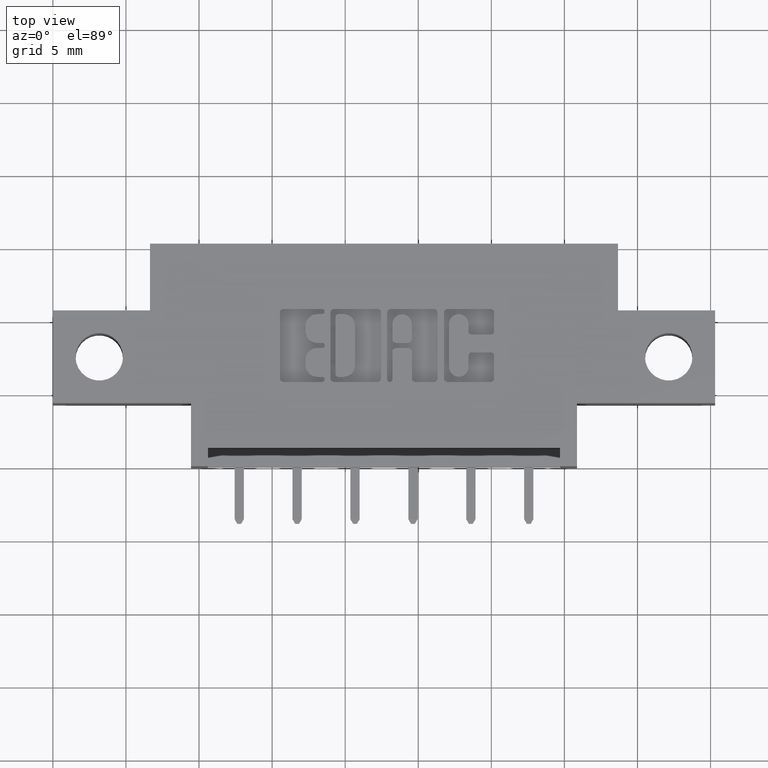
[diagram: clean part render]
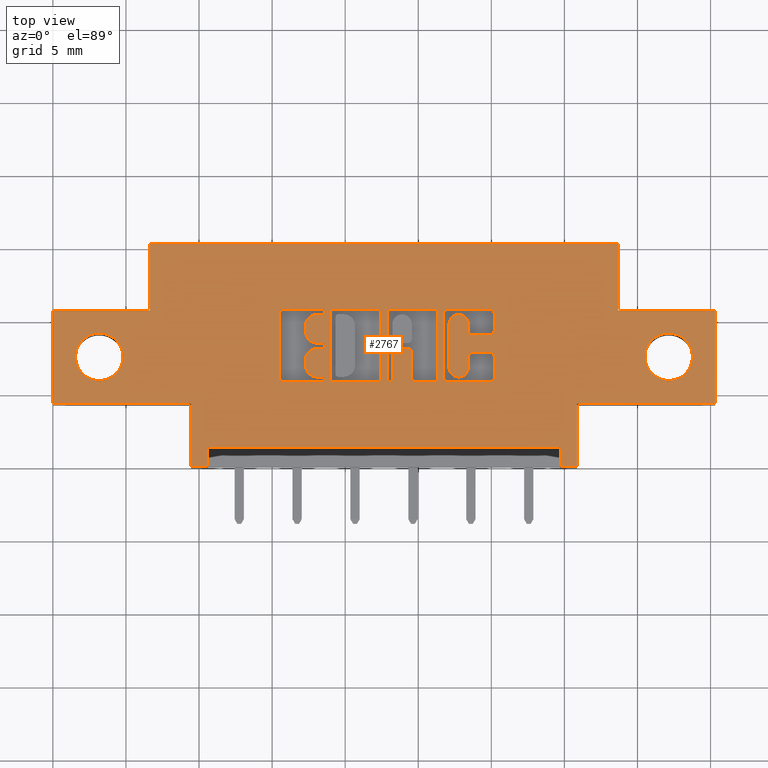
[diagram: same view with one face highlighted and labeled with its STEP entity id]
A machine part, top view. The second image highlights one B-rep face of the part: STEP entity #2767.
In plain terms, the highlighted planar face has unit normal (0, 0, -1).
Its self-contained STEP definition (entity closure, byte-faithful):
#14 = VERTEX_POINT ( 'NONE', #5236 ) ;
#21 = DIRECTION ( 'NONE',  ( 1.000000000000000000, 0.0000000000000000000, 0.0000000000000000000 ) ) ;
#23 = VERTEX_POINT ( 'NONE', #597 ) ;
#29 = ORIENTED_EDGE ( 'NONE', *, *, #5476, .T. ) ;
#45 = CARTESIAN_POINT ( 'NONE',  ( 0.7479550397591688800, 0.2366589681657896800, 0.0000000000000000000 ) ) ;
#46 = EDGE_CURVE ( 'NONE', #1176, #23, #290, .T. ) ;
#52 = DIRECTION ( 'NONE',  ( -0.0000000000000000000, 0.0000000000000000000, 1.000000000000000000 ) ) ;
#61 = EDGE_CURVE ( 'NONE', #4767, #931, #5685, .T. ) ;
#62 = DIRECTION ( 'NONE',  ( -0.0000000000000000000, 0.0000000000000000000, 1.000000000000000000 ) ) ;
#67 = CARTESIAN_POINT ( 'NONE',  ( 1.188678631909939600, 0.2965345564089702000, 0.0000000000000000000 ) ) ;
#81 = ORIENTED_EDGE ( 'NONE', *, *, #5847, .F. ) ;
#99 = CARTESIAN_POINT ( 'NONE',  ( 1.723000000000000800, 0.2950000000000001500, 0.0000000000000000000 ) ) ;
#107 = CARTESIAN_POINT ( 'NONE',  ( 1.178862961706166800, 0.3637718973050383900, 0.0000000000000000000 ) ) ;
#120 = DIRECTION ( 'NONE',  ( -0.0000000000000000000, -1.000000000000000000, -0.0000000000000000000 ) ) ;
#124 = CIRCLE ( 'NONE', #8358, 0.006870969142648433200 ) ;
#140 = CIRCLE ( 'NONE', #750, 0.06400000000000000100 ) ;
#158 = CARTESIAN_POINT ( 'NONE',  ( 1.366499999999999800, 0.05000000000000000300, 0.0000000000000000000 ) ) ;
#174 = CIRCLE ( 'NONE', #3178, 0.006870969142662229500 ) ;
#175 = ORIENTED_EDGE ( 'NONE', *, *, #7227, .F. ) ;
#182 = CARTESIAN_POINT ( 'NONE',  ( 0.9570288151001877800, 0.3181290308573495600, 0.0000000000000000000 ) ) ;
#193 = CARTESIAN_POINT ( 'NONE',  ( -1.634053534412015200E-015, 0.2268432979619802400, 0.0000000000000000000 ) ) ;
#196 = AXIS2_PLACEMENT_3D ( 'NONE', #5502, #2895, #6872 ) ;
#202 = CARTESIAN_POINT ( 'NONE',  ( 0.9005887114283305200, 0.2337142671046476800, 0.0000000000000000000 ) ) ;
#232 = CARTESIAN_POINT ( 'NONE',  ( -0.0000000000000000000, 0.3181290308573565500, 0.0000000000000000000 ) ) ;
#256 = AXIS2_PLACEMENT_3D ( 'NONE', #1093, #1004, #853 ) ;
#287 = CARTESIAN_POINT ( 'NONE',  ( 1.093221239177998300, 0.2668421540424527600, 0.0000000000000000000 ) ) ;
#290 = LINE ( 'NONE', #529, #7116 ) ;
#311 = DIRECTION ( 'NONE',  ( -0.0000000000000000000, 0.0000000000000000000, 1.000000000000000000 ) ) ;
#352 = DIRECTION ( 'NONE',  ( 0.0000000000000000000, -1.000000000000000000, 0.0000000000000000000 ) ) ;
#393 = LINE ( 'NONE', #8258, #2214 ) ;
#412 = DIRECTION ( 'NONE',  ( 1.000000000000000000, 0.0000000000000000000, 0.0000000000000000000 ) ) ;
#416 = DIRECTION ( 'NONE',  ( -0.0000000000000000000, 0.0000000000000000000, 1.000000000000000000 ) ) ;
#429 = CARTESIAN_POINT ( 'NONE',  ( 0.9074596805709865800, 0.2337142671046476800, 0.0000000000000000000 ) ) ;
#430 = CARTESIAN_POINT ( 'NONE',  ( 1.119478156973165600, 0.0000000000000000000, 0.0000000000000000000 ) ) ;
#439 = CARTESIAN_POINT ( 'NONE',  ( -0.0000000000000000000, 0.2268432979619829400, 0.0000000000000000000 ) ) ;
#442 = CARTESIAN_POINT ( 'NONE',  ( 0.7577707099630097700, 0.4133410318342098400, 0.0000000000000000000 ) ) ;
#448 = DIRECTION ( 'NONE',  ( 1.000000000000000000, 7.203446383881654600E-015, 0.0000000000000000000 ) ) ;
#449 = VERTEX_POINT ( 'NONE', #7503 ) ;
#451 = ORIENTED_EDGE ( 'NONE', *, *, #3701, .F. ) ;
#461 = ORIENTED_EDGE ( 'NONE', *, *, #2491, .F. ) ;
#467 = VECTOR ( 'NONE', #2486, 39.37007874015748100 ) ;
#477 = LINE ( 'NONE', #8010, #7241 ) ;
#510 = ORIENTED_EDGE ( 'NONE', *, *, #4134, .F. ) ;
#512 = EDGE_CURVE ( 'NONE', #4960, #7691, #2773, .T. ) ;
#523 = DIRECTION ( 'NONE',  ( -1.000000000000000000, 0.0000000000000000000, -0.0000000000000000000 ) ) ;
#525 = VECTOR ( 'NONE', #1451, 39.37007874015748100 ) ;
#529 = CARTESIAN_POINT ( 'NONE',  ( 0.0000000000000000000, 0.5999999999999999800, 0.0000000000000000000 ) ) ;
#550 = DIRECTION ( 'NONE',  ( -0.0000000000000000000, -1.000000000000000000, -0.0000000000000000000 ) ) ;
#560 = ORIENTED_EDGE ( 'NONE', *, *, #5642, .F. ) ;
#563 = VERTEX_POINT ( 'NONE', #6988 ) ;
#565 = CARTESIAN_POINT ( 'NONE',  ( 0.9668444853039842600, 0.2366589681657875800, 0.0000000000000000000 ) ) ;
#566 = AXIS2_PLACEMENT_3D ( 'NONE', #3360, #2489, #3016 ) ;
#570 = VERTEX_POINT ( 'NONE', #3544 ) ;
#576 = DIRECTION ( 'NONE',  ( -0.0000000000000000000, 0.0000000000000000000, 1.000000000000000000 ) ) ;
#597 = CARTESIAN_POINT ( 'NONE',  ( 2.731847993664263200E-016, 0.1699999999999999800, 3.951581205970576600E-015 ) ) ;
#598 = AXIS2_PLACEMENT_3D ( 'NONE', #6696, #6530, #6487 ) ;
#604 = DIRECTION ( 'NONE',  ( 0.0000000000000000000, 1.000000000000000000, -0.0000000000000000000 ) ) ;
#607 = LINE ( 'NONE', #7746, #3981 ) ;
#616 = CIRCLE ( 'NONE', #7551, 0.009815670203840084000 ) ;
#632 = VERTEX_POINT ( 'NONE', #2632 ) ;
#639 = EDGE_CURVE ( 'NONE', #7691, #1658, #6908, .T. ) ;
#640 = CARTESIAN_POINT ( 'NONE',  ( 1.036044960240806400, 0.2366589681657806100, 0.0000000000000000000 ) ) ;
#649 = CARTESIAN_POINT ( 'NONE',  ( 0.4174999999999999800, 0.05000000000000000300, 0.0000000000000000000 ) ) ;
#654 = EDGE_CURVE ( 'NONE', #5436, #2838, #5047, .T. ) ;
#656 = DIRECTION ( 'NONE',  ( 1.000000000000000000, 0.0000000000000000000, 0.0000000000000000000 ) ) ;
#658 = VECTOR ( 'NONE', #448, 39.37007874015748100 ) ;
#670 = EDGE_LOOP ( 'NONE', ( #2361, #2800, #1204, #6660, #3280, #4911, #5329, #3878, #2754, #1996, #4095, #1930, #5285, #2627 ) ) ;
#675 = VERTEX_POINT ( 'NONE', #7147 ) ;
#681 = ORIENTED_EDGE ( 'NONE', *, *, #4059, .F. ) ;
#708 = EDGE_CURVE ( 'NONE', #3999, #845, #8163, .T. ) ;
#750 = AXIS2_PLACEMENT_3D ( 'NONE', #6349, #767, #4260 ) ;
#767 = DIRECTION ( 'NONE',  ( 0.0000000000000000000, 0.0000000000000000000, 1.000000000000000000 ) ) ;
#779 = EDGE_LOOP ( 'NONE', ( #3838, #5806, #5990, #6165, #4881, #81, #7137, #5712 ) ) ;
#788 = CARTESIAN_POINT ( 'NONE',  ( 1.063038053301298900, 0.4231567020380507800, 0.0000000000000000000 ) ) ;
#790 = LINE ( 'NONE', #232, #4157 ) ;
#797 = CIRCLE ( 'NONE', #1038, 0.009815670203806345400 ) ;
#805 = EDGE_CURVE ( 'NONE', #3637, #5575, #2012, .T. ) ;
#809 = CARTESIAN_POINT ( 'NONE',  ( 0.7251336065353507500, 0.4231567020380324600, 0.0000000000000000000 ) ) ;
#826 = VERTEX_POINT ( 'NONE', #6722 ) ;
#831 = VERTEX_POINT ( 'NONE', #2255 ) ;
#836 = ORIENTED_EDGE ( 'NONE', *, *, #3539, .F. ) ;
#841 = EDGE_CURVE ( 'NONE', #1174, #5162, #3390, .T. ) ;
#845 = VERTEX_POINT ( 'NONE', #3173 ) ;
#853 = DIRECTION ( 'NONE',  ( 1.000000000000000000, 0.0000000000000000000, 0.0000000000000000000 ) ) ;
#864 = VERTEX_POINT ( 'NONE', #6965 ) ;
#907 = CIRCLE ( 'NONE', #256, 0.009815670203803203800 ) ;
#930 = CARTESIAN_POINT ( 'NONE',  ( 0.7577707099629755700, 0.2268432979619829400, 0.0000000000000000000 ) ) ;
#931 = VERTEX_POINT ( 'NONE', #1497 ) ;
#933 = ORIENTED_EDGE ( 'NONE', *, *, #7105, .F. ) ;
#935 = LINE ( 'NONE', #7315, #4318 ) ;
#947 = DIRECTION ( 'NONE',  ( 1.000000000000000000, 0.0000000000000000000, 0.0000000000000000000 ) ) ;
#948 = LINE ( 'NONE', #6334, #6052 ) ;
#980 = VERTEX_POINT ( 'NONE', #3693 ) ;
#1000 = DIRECTION ( 'NONE',  ( 1.000000000000000000, 0.0000000000000000000, 0.0000000000000000000 ) ) ;
#1004 = DIRECTION ( 'NONE',  ( -0.0000000000000000000, 0.0000000000000000000, 1.000000000000000000 ) ) ;
#1012 = DIRECTION ( 'NONE',  ( 1.000000000000000000, 0.0000000000000000000, 0.0000000000000000000 ) ) ;
#1038 = AXIS2_PLACEMENT_3D ( 'NONE', #8085, #7515, #8007 ) ;
#1046 = LINE ( 'NONE', #6019, #7954 ) ;
#1050 = CARTESIAN_POINT ( 'NONE',  ( 0.8735956183678617000, 0.2366589681657896800, 0.0000000000000000000 ) ) ;
#1058 = VECTOR ( 'NONE', #6290, 39.37007874015748100 ) ;
#1093 = CARTESIAN_POINT ( 'NONE',  ( 0.9241463199174497800, 0.3083133606535453100, 0.0000000000000000000 ) ) ;
#1106 = DIRECTION ( 'NONE',  ( 1.000000000000000000, 0.0000000000000000000, 0.0000000000000000000 ) ) ;
#1137 = EDGE_CURVE ( 'NONE', #675, #864, #7787, .T. ) ;
#1174 = VERTEX_POINT ( 'NONE', #7412 ) ;
#1176 = VERTEX_POINT ( 'NONE', #3323 ) ;
#1179 = VERTEX_POINT ( 'NONE', #2548 ) ;
#1181 = VERTEX_POINT ( 'NONE', #45 ) ;
#1185 = DIRECTION ( 'NONE',  ( 0.0000000000000000000, -1.000000000000000000, 0.0000000000000000000 ) ) ;
#1186 = CARTESIAN_POINT ( 'NONE',  ( 1.036044960240806400, 0.4133410318342007300, 0.0000000000000000000 ) ) ;
#1204 = ORIENTED_EDGE ( 'NONE', *, *, #7855, .T. ) ;
#1213 = AXIS2_PLACEMENT_3D ( 'NONE', #8203, #8156, #8123 ) ;
#1230 = CARTESIAN_POINT ( 'NONE',  ( 0.9005887114283305200, 0.4133410318342098400, 0.0000000000000000000 ) ) ;
#1285 = VECTOR ( 'NONE', #4186, 39.37007874015748100 ) ;
#1305 = CARTESIAN_POINT ( 'NONE',  ( 1.178862961706152600, 0.2965345564089702000, 0.0000000000000000000 ) ) ;
#1324 = CIRCLE ( 'NONE', #7613, 0.009815670203803340800 ) ;
#1330 = CARTESIAN_POINT ( 'NONE',  ( 0.7320045756779730600, 0.3250000000000201100, 0.0000000000000000000 ) ) ;
#1364 = VERTEX_POINT ( 'NONE', #7189 ) ;
#1401 = DIRECTION ( 'NONE',  ( 0.0000000000000000000, -1.000000000000000000, 0.0000000000000000000 ) ) ;
#1418 = CARTESIAN_POINT ( 'NONE',  ( 0.6208421106199376600, 0.4133410318342098400, 0.0000000000000000000 ) ) ;
#1419 = EDGE_CURVE ( 'NONE', #2031, #4827, #935, .T. ) ;
#1427 = LINE ( 'NONE', #8383, #6672 ) ;
#1432 = VERTEX_POINT ( 'NONE', #4201 ) ;
#1451 = DIRECTION ( 'NONE',  ( -1.000000000000000000, -0.0000000000000000000, 4.430023773509616400E-015 ) ) ;
#1460 = DIRECTION ( 'NONE',  ( -1.000000000000000000, 0.0000000000000000000, 0.0000000000000000000 ) ) ;
#1493 = DIRECTION ( 'NONE',  ( 1.000000000000000000, 0.0000000000000000000, 0.0000000000000000000 ) ) ;
#1497 = CARTESIAN_POINT ( 'NONE',  ( 0.9143306497136465300, 0.2337142671046476800, 0.0000000000000000000 ) ) ;
#1504 = ORIENTED_EDGE ( 'NONE', *, *, #2782, .F. ) ;
#1513 = ORIENTED_EDGE ( 'NONE', *, *, #805, .F. ) ;
#1539 = VERTEX_POINT ( 'NONE', #2245 ) ;
#1549 = DIRECTION ( 'NONE',  ( 1.000000000000000000, 0.0000000000000000000, 0.0000000000000000000 ) ) ;
#1555 = AXIS2_PLACEMENT_3D ( 'NONE', #442, #62, #5223 ) ;
#1562 = DIRECTION ( 'NONE',  ( -0.0000000000000000000, 0.0000000000000000000, 1.000000000000000000 ) ) ;
#1570 = CIRCLE ( 'NONE', #6449, 0.009815670203788042300 ) ;
#1585 = VECTOR ( 'NONE', #7114, 39.37007874015748100 ) ;
#1599 = AXIS2_PLACEMENT_3D ( 'NONE', #4597, #2876, #5438 ) ;
#1611 = VECTOR ( 'NONE', #3401, 39.37007874015748100 ) ;
#1629 = VECTOR ( 'NONE', #604, 39.37007874015748100 ) ;
#1640 = CARTESIAN_POINT ( 'NONE',  ( 0.0000000000000000000, 0.0000000000000000000, 0.0000000000000000000 ) ) ;
#1655 = AXIS2_PLACEMENT_3D ( 'NONE', #6251, #7702, #7778 ) ;
#1658 = VERTEX_POINT ( 'NONE', #5126 ) ;
#1676 = FACE_BOUND ( 'NONE', #779, .T. ) ;
#1683 = CIRCLE ( 'NONE', #2322, 0.009815670203806754800 ) ;
#1711 = DIRECTION ( 'NONE',  ( -0.0000000000000000000, 0.0000000000000000000, 1.000000000000000000 ) ) ;
#1738 = CIRCLE ( 'NONE', #2153, 0.03141014465215624000 ) ;
#1742 = EDGE_CURVE ( 'NONE', #8329, #6746, #6054, .T. ) ;
#1749 = VERTEX_POINT ( 'NONE', #640 ) ;
#1750 = CIRCLE ( 'NONE', #5091, 0.03141014465218178200 ) ;
#1764 = DIRECTION ( 'NONE',  ( 1.000000000000000000, 0.0000000000000000000, 0.0000000000000000000 ) ) ;
#1828 = CARTESIAN_POINT ( 'NONE',  ( 1.066964321382817900, 0.0000000000000000000, 0.0000000000000000000 ) ) ;
#1844 = ORIENTED_EDGE ( 'NONE', *, *, #1137, .F. ) ;
#1852 = CIRCLE ( 'NONE', #6059, 0.006870969142663458500 ) ;
#1876 = CARTESIAN_POINT ( 'NONE',  ( -0.0000000000000000000, 0.4231567020380063200, 0.0000000000000000000 ) ) ;
#1890 = FACE_BOUND ( 'NONE', #2855, .T. ) ;
#1905 = EDGE_CURVE ( 'NONE', #1658, #675, #6718, .T. ) ;
#1917 = AXIS2_PLACEMENT_3D ( 'NONE', #107, #2987, #1970 ) ;
#1930 = ORIENTED_EDGE ( 'NONE', *, *, #61, .F. ) ;
#1935 = LINE ( 'NONE', #4211, #5486 ) ;
#1936 = ORIENTED_EDGE ( 'NONE', *, *, #8174, .T. ) ;
#1939 = CARTESIAN_POINT ( 'NONE',  ( 1.053222383097458100, 0.0000000000000000000, 0.0000000000000000000 ) ) ;
#1942 = AXIS2_PLACEMENT_3D ( 'NONE', #1050, #52, #5695 ) ;
#1947 = LINE ( 'NONE', #4729, #6938 ) ;
#1970 = DIRECTION ( 'NONE',  ( 1.000000000000000000, 0.0000000000000000000, 0.0000000000000000000 ) ) ;
#1982 = DIRECTION ( 'NONE',  ( -0.0000000000000000000, 0.0000000000000000000, 1.000000000000000000 ) ) ;
#1996 = ORIENTED_EDGE ( 'NONE', *, *, #5082, .T. ) ;
#2008 = DIRECTION ( 'NONE',  ( -1.000000000000000000, 0.0000000000000000000, 0.0000000000000000000 ) ) ;
#2012 = LINE ( 'NONE', #7752, #5362 ) ;
#2017 = AXIS2_PLACEMENT_3D ( 'NONE', #429, #416, #412 ) ;
#2027 = VERTEX_POINT ( 'NONE', #3734 ) ;
#2031 = VERTEX_POINT ( 'NONE', #5604 ) ;
#2047 = CARTESIAN_POINT ( 'NONE',  ( 0.8735956183678956800, 0.4231567020380507800, 0.0000000000000000000 ) ) ;
#2059 = ORIENTED_EDGE ( 'NONE', *, *, #6321, .T. ) ;
#2076 = VERTEX_POINT ( 'NONE', #930 ) ;
#2088 = VECTOR ( 'NONE', #1460, 39.37007874015748100 ) ;
#2091 = AXIS2_PLACEMENT_3D ( 'NONE', #5051, #5032, #5031 ) ;
#2112 = CARTESIAN_POINT ( 'NONE',  ( 0.06099999999999979700, 0.2949999999999999800, 0.0000000000000000000 ) ) ;
#2115 = ORIENTED_EDGE ( 'NONE', *, *, #639, .F. ) ;
#2116 = DIRECTION ( 'NONE',  ( 0.0000000000000000000, -1.000000000000000000, 0.0000000000000000000 ) ) ;
#2146 = VERTEX_POINT ( 'NONE', #2047 ) ;
#2153 = AXIS2_PLACEMENT_3D ( 'NONE', #5719, #576, #8201 ) ;
#2165 = VERTEX_POINT ( 'NONE', #5299 ) ;
#2169 = EDGE_CURVE ( 'NONE', #4767, #8445, #2966, .T. ) ;
#2171 = DIRECTION ( 'NONE',  ( -0.0000000000000000000, 0.0000000000000000000, 1.000000000000000000 ) ) ;
#2184 = DIRECTION ( 'NONE',  ( -1.000000000000000000, -0.0000000000000000000, -0.0000000000000000000 ) ) ;
#2214 = VECTOR ( 'NONE', #8180, 39.37007874015748100 ) ;
#2227 = EDGE_CURVE ( 'NONE', #3604, #6324, #5861, .T. ) ;
#2233 = DIRECTION ( 'NONE',  ( -0.0000000000000000000, 0.0000000000000000000, 1.000000000000000000 ) ) ;
#2241 = CARTESIAN_POINT ( 'NONE',  ( 0.7320045756779992600, 0.4162857328953860100, 0.0000000000000000000 ) ) ;
#2245 = CARTESIAN_POINT ( 'NONE',  ( 0.9668444853039842600, 0.3083133606535432000, 0.0000000000000000000 ) ) ;
#2252 = EDGE_CURVE ( 'NONE', #5903, #563, #2319, .T. ) ;
#2255 = CARTESIAN_POINT ( 'NONE',  ( 0.7577707099630097700, 0.4231567020380507800, 0.0000000000000000000 ) ) ;
#2289 = EDGE_LOOP ( 'NONE', ( #4128, #3003, #3136, #461, #4236, #933, #8139, #2059, #3204, #29, #6219, #4652, #6070, #5692, #3933, #3710, #6248, #6445, #3215, #3609, #175 ) ) ;
#2318 = ORIENTED_EDGE ( 'NONE', *, *, #7256, .T. ) ;
#2319 = CIRCLE ( 'NONE', #3195, 0.009815670203822599700 ) ;
#2322 = AXIS2_PLACEMENT_3D ( 'NONE', #5852, #5215, #3948 ) ;
#2339 = DIRECTION ( 'NONE',  ( -0.0000000000000000000, 1.000000000000000000, -0.0000000000000000000 ) ) ;
#2350 = CARTESIAN_POINT ( 'NONE',  ( 1.066964321382817900, 0.2668421540424527600, 0.0000000000000000000 ) ) ;
#2361 = ORIENTED_EDGE ( 'NONE', *, *, #708, .T. ) ;
#2379 = VECTOR ( 'NONE', #2653, 39.37007874015748100 ) ;
#2390 = EDGE_CURVE ( 'NONE', #3483, #1432, #1046, .T. ) ;
#2424 = CIRCLE ( 'NONE', #5009, 0.006870969142648433200 ) ;
#2426 = LINE ( 'NONE', #649, #5764 ) ;
#2434 = CARTESIAN_POINT ( 'NONE',  ( 1.366499999999999800, 0.0000000000000000000, 0.0000000000000000000 ) ) ;
#2462 = EDGE_CURVE ( 'NONE', #6501, #3637, #2426, .T. ) ;
#2467 = CARTESIAN_POINT ( 'NONE',  ( 0.0000000000000000000, 0.0000000000000000000, 0.0000000000000000000 ) ) ;
#2486 = DIRECTION ( 'NONE',  ( -1.000000000000000000, 0.0000000000000000000, 0.0000000000000000000 ) ) ;
#2489 = DIRECTION ( 'NONE',  ( 0.0000000000000000000, 0.0000000000000000000, 1.000000000000000000 ) ) ;
#2491 = EDGE_CURVE ( 'NONE', #4093, #2165, #393, .T. ) ;
#2512 = EDGE_CURVE ( 'NONE', #5787, #8238, #3788, .T. ) ;
#2519 = AXIS2_PLACEMENT_3D ( 'NONE', #6014, #5504, #5070 ) ;
#2524 = EDGE_CURVE ( 'NONE', #8482, #449, #140, .T. ) ;
#2542 = VECTOR ( 'NONE', #5222, 39.37007874015748100 ) ;
#2548 = CARTESIAN_POINT ( 'NONE',  ( 1.784000000000000300, 0.1699999999999999800, 0.0000000000000000000 ) ) ;
#2560 = VECTOR ( 'NONE', #7622, 39.37007874015748100 ) ;
#2577 = ORIENTED_EDGE ( 'NONE', *, *, #6724, .F. ) ;
#2580 = CARTESIAN_POINT ( 'NONE',  ( 0.7251336065353351000, 0.2337142671046476800, 0.0000000000000000000 ) ) ;
#2585 = EDGE_CURVE ( 'NONE', #5045, #7776, #6608, .T. ) ;
#2604 = CIRCLE ( 'NONE', #598, 0.009815670203795690700 ) ;
#2622 = CARTESIAN_POINT ( 'NONE',  ( 0.2615000000000001200, 0.4199999999999999800, 0.0000000000000000000 ) ) ;
#2627 = ORIENTED_EDGE ( 'NONE', *, *, #7757, .F. ) ;
#2632 = CARTESIAN_POINT ( 'NONE',  ( 1.178862961706167900, 0.4231567020380507800, 0.0000000000000000000 ) ) ;
#2653 = DIRECTION ( 'NONE',  ( 1.000000000000000000, 0.0000000000000000000, 0.0000000000000000000 ) ) ;
#2754 = ORIENTED_EDGE ( 'NONE', *, *, #2390, .T. ) ;
#2767 = ADVANCED_FACE ( 'NONE', ( #1890, #5447, #6891, #5240, #3475, #1676, #8338 ), #3622, .F. ) ;
#2773 = CIRCLE ( 'NONE', #7920, 0.009815670203811535700 ) ;
#2782 = EDGE_CURVE ( 'NONE', #2027, #5983, #6695, .T. ) ;
#2800 = ORIENTED_EDGE ( 'NONE', *, *, #5366, .F. ) ;
#2838 = VERTEX_POINT ( 'NONE', #7457 ) ;
#2855 = EDGE_LOOP ( 'NONE', ( #5763, #836 ) ) ;
#2873 = EDGE_CURVE ( 'NONE', #8151, #3899, #4414, .T. ) ;
#2876 = DIRECTION ( 'NONE',  ( 0.0000000000000000000, 0.0000000000000000000, 1.000000000000000000 ) ) ;
#2895 = DIRECTION ( 'NONE',  ( -0.0000000000000000000, 0.0000000000000000000, 1.000000000000000000 ) ) ;
#2909 = ORIENTED_EDGE ( 'NONE', *, *, #1742, .F. ) ;
#2917 = CARTESIAN_POINT ( 'NONE',  ( 1.066964321382817900, 0.3831578459575293300, 0.0000000000000000000 ) ) ;
#2920 = CARTESIAN_POINT ( 'NONE',  ( 0.7251336064154139100, 0.2405852362473099600, 0.0000000000000000000 ) ) ;
#2921 = EDGE_CURVE ( 'NONE', #570, #23, #5864, .T. ) ;
#2939 = DIRECTION ( 'NONE',  ( 1.000000000000000000, 0.0000000000000000000, 0.0000000000000000000 ) ) ;
#2946 = CARTESIAN_POINT ( 'NONE',  ( 1.412000000000000100, 0.1699999999999999800, 0.0000000000000000000 ) ) ;
#2956 = DIRECTION ( 'NONE',  ( -0.0000000000000000000, 0.0000000000000000000, 1.000000000000000000 ) ) ;
#2962 = CARTESIAN_POINT ( 'NONE',  ( 0.0000000000000000000, 0.2268432979619843800, 0.0000000000000000000 ) ) ;
#2964 = VECTOR ( 'NONE', #8071, 39.37007874015748100 ) ;
#2966 = LINE ( 'NONE', #3910, #6220 ) ;
#2984 = LINE ( 'NONE', #8324, #2560 ) ;
#2987 = DIRECTION ( 'NONE',  ( -0.0000000000000000000, 0.0000000000000000000, 1.000000000000000000 ) ) ;
#3003 = ORIENTED_EDGE ( 'NONE', *, *, #7628, .F. ) ;
#3016 = DIRECTION ( 'NONE',  ( -1.000000000000000000, 0.0000000000000000000, 0.0000000000000000000 ) ) ;
#3045 = LINE ( 'NONE', #2467, #7935 ) ;
#3060 = CIRCLE ( 'NONE', #1599, 0.06400000000000073700 ) ;
#3066 = VECTOR ( 'NONE', #3904, 39.37007874015748100 ) ;
#3079 = VECTOR ( 'NONE', #2339, 39.37007874015748100 ) ;
#3097 = LINE ( 'NONE', #6255, #6149 ) ;
#3109 = DIRECTION ( 'NONE',  ( 1.000000000000000000, 0.0000000000000000000, 0.0000000000000000000 ) ) ;
#3112 = DIRECTION ( 'NONE',  ( 1.000000000000000000, 0.0000000000000000000, 0.0000000000000000000 ) ) ;
#3129 = AXIS2_PLACEMENT_3D ( 'NONE', #4947, #7387, #7097 ) ;
#3136 = ORIENTED_EDGE ( 'NONE', *, *, #4614, .T. ) ;
#3137 = CIRCLE ( 'NONE', #1213, 0.006870969142662229500 ) ;
#3140 = EDGE_CURVE ( 'NONE', #3604, #1749, #7596, .T. ) ;
#3156 = DIRECTION ( 'NONE',  ( -0.0000000000000000000, 0.0000000000000000000, 1.000000000000000000 ) ) ;
#3157 = CARTESIAN_POINT ( 'NONE',  ( -0.0000000000000000000, 0.3539562271012333700, 0.0000000000000000000 ) ) ;
#3173 = CARTESIAN_POINT ( 'NONE',  ( 1.026229290037013600, 0.4231567020380063200, 0.0000000000000000000 ) ) ;
#3178 = AXIS2_PLACEMENT_3D ( 'NONE', #2580, #3156, #3109 ) ;
#3180 = DIRECTION ( 'NONE',  ( 1.000000000000000000, 0.0000000000000000000, 0.0000000000000000000 ) ) ;
#3195 = AXIS2_PLACEMENT_3D ( 'NONE', #1418, #7816, #7786 ) ;
#3203 = CIRCLE ( 'NONE', #566, 0.06400000000000073700 ) ;
#3204 = ORIENTED_EDGE ( 'NONE', *, *, #1419, .F. ) ;
#3210 = CARTESIAN_POINT ( 'NONE',  ( 0.7479550397591688800, 0.4133410318342098400, 0.0000000000000000000 ) ) ;
#3215 = ORIENTED_EDGE ( 'NONE', *, *, #8413, .F. ) ;
#3225 = ORIENTED_EDGE ( 'NONE', *, *, #7974, .F. ) ;
#3228 = DIRECTION ( 'NONE',  ( 0.0000000000000000000, 1.000000000000000000, -0.0000000000000000000 ) ) ;
#3236 = DIRECTION ( 'NONE',  ( 0.0000000000000000000, 1.000000000000000000, -0.0000000000000000000 ) ) ;
#3255 = CARTESIAN_POINT ( 'NONE',  ( 0.3720000000000002700, 0.1699999999999999800, 2.303612362224999500E-015 ) ) ;
#3280 = ORIENTED_EDGE ( 'NONE', *, *, #2227, .T. ) ;
#3282 = VECTOR ( 'NONE', #4417, 39.37007874015748100 ) ;
#3297 = VECTOR ( 'NONE', #3464, 39.37007874015748100 ) ;
#3303 = CIRCLE ( 'NONE', #5928, 0.009815670203796920600 ) ;
#3323 = CARTESIAN_POINT ( 'NONE',  ( 0.0000000000000000000, 0.4199999999999999800, 0.0000000000000000000 ) ) ;
#3346 = VERTEX_POINT ( 'NONE', #4217 ) ;
#3360 = CARTESIAN_POINT ( 'NONE',  ( 1.659000000000000000, 0.2950000000000001500, 0.0000000000000000000 ) ) ;
#3370 = VECTOR ( 'NONE', #5269, 39.37007874015748100 ) ;
#3390 = LINE ( 'NONE', #4657, #1585 ) ;
#3397 = EDGE_CURVE ( 'NONE', #7406, #2146, #6040, .T. ) ;
#3401 = DIRECTION ( 'NONE',  ( -0.0000000000000000000, -1.000000000000000000, -0.0000000000000000000 ) ) ;
#3424 = ORIENTED_EDGE ( 'NONE', *, *, #5390, .F. ) ;
#3433 = LINE ( 'NONE', #4741, #1629 ) ;
#3436 = ORIENTED_EDGE ( 'NONE', *, *, #5184, .F. ) ;
#3455 = CARTESIAN_POINT ( 'NONE',  ( 1.178862961706133900, 0.2268432979619829400, 0.0000000000000000000 ) ) ;
#3464 = DIRECTION ( 'NONE',  ( 1.000000000000000000, 0.0000000000000000000, 0.0000000000000000000 ) ) ;
#3475 = FACE_OUTER_BOUND ( 'NONE', #4883, .T. ) ;
#3483 = VERTEX_POINT ( 'NONE', #182 ) ;
#3491 = LINE ( 'NONE', #8042, #3079 ) ;
#3539 = EDGE_CURVE ( 'NONE', #14, #5992, #3060, .T. ) ;
#3544 = CARTESIAN_POINT ( 'NONE',  ( 0.3720000000000002700, 0.1699999999999999800, 2.303612362224999500E-015 ) ) ;
#3579 = CARTESIAN_POINT ( 'NONE',  ( 1.784000000000000300, 0.1699999999999999800, 0.0000000000000000000 ) ) ;
#3587 = CARTESIAN_POINT ( 'NONE',  ( 0.2615000000000001200, 0.5999999999999999800, 0.0000000000000000000 ) ) ;
#3604 = VERTEX_POINT ( 'NONE', #5052 ) ;
#3609 = ORIENTED_EDGE ( 'NONE', *, *, #4079, .F. ) ;
#3622 = PLANE ( 'NONE',  #7756 ) ;
#3637 = VERTEX_POINT ( 'NONE', #7553 ) ;
#3679 = CARTESIAN_POINT ( 'NONE',  ( 1.412000000000000100, 0.1699999999999999800, 0.0000000000000000000 ) ) ;
#3682 = VERTEX_POINT ( 'NONE', #5879 ) ;
#3693 = CARTESIAN_POINT ( 'NONE',  ( 1.178862961706156100, 0.3063502266127572900, 0.0000000000000000000 ) ) ;
#3701 = EDGE_CURVE ( 'NONE', #7986, #2027, #1570, .T. ) ;
#3710 = ORIENTED_EDGE ( 'NONE', *, *, #4501, .F. ) ;
#3713 = EDGE_LOOP ( 'NONE', ( #4419, #4836 ) ) ;
#3718 = CARTESIAN_POINT ( 'NONE',  ( 0.9570288151001873400, 0.3083133606535525300, 0.0000000000000000000 ) ) ;
#3722 = VERTEX_POINT ( 'NONE', #565 ) ;
#3734 = CARTESIAN_POINT ( 'NONE',  ( 1.119478156973178700, 0.2965345564089684200, 0.0000000000000000000 ) ) ;
#3747 = DIRECTION ( 'NONE',  ( -0.0000000000000000000, 0.0000000000000000000, 1.000000000000000000 ) ) ;
#3753 = ORIENTED_EDGE ( 'NONE', *, *, #5267, .F. ) ;
#3771 = CARTESIAN_POINT ( 'NONE',  ( 0.0000000000000000000, 0.5999999999999999800, 0.0000000000000000000 ) ) ;
#3782 = DIRECTION ( 'NONE',  ( 0.0000000000000000000, -1.000000000000000000, 0.0000000000000000000 ) ) ;
#3788 = CIRCLE ( 'NONE', #1655, 0.03141014465221592800 ) ;
#3805 = AXIS2_PLACEMENT_3D ( 'NONE', #6528, #1562, #6021 ) ;
#3806 = CARTESIAN_POINT ( 'NONE',  ( 0.8834112885716686200, 0.4133410318342098400, 0.0000000000000000000 ) ) ;
#3813 = VERTEX_POINT ( 'NONE', #809 ) ;
#3829 = VERTEX_POINT ( 'NONE', #3210 ) ;
#3838 = ORIENTED_EDGE ( 'NONE', *, *, #3397, .F. ) ;
#3878 = ORIENTED_EDGE ( 'NONE', *, *, #7604, .T. ) ;
#3899 = VERTEX_POINT ( 'NONE', #6107 ) ;
#3904 = DIRECTION ( 'NONE',  ( 1.000000000000000000, 0.0000000000000000000, 0.0000000000000000000 ) ) ;
#3910 = CARTESIAN_POINT ( 'NONE',  ( 0.9005887114283305200, 0.0000000000000000000, 0.0000000000000000000 ) ) ;
#3926 = AXIS2_PLACEMENT_3D ( 'NONE', #1305, #2956, #2939 ) ;
#3933 = ORIENTED_EDGE ( 'NONE', *, *, #6051, .F. ) ;
#3939 = CARTESIAN_POINT ( 'NONE',  ( 0.6802269153529090200, 0.3780046191005195200, 0.0000000000000000000 ) ) ;
#3943 = ORIENTED_EDGE ( 'NONE', *, *, #654, .T. ) ;
#3948 = DIRECTION ( 'NONE',  ( 1.000000000000000000, 0.0000000000000000000, 0.0000000000000000000 ) ) ;
#3961 = LINE ( 'NONE', #5372, #5908 ) ;
#3981 = VECTOR ( 'NONE', #3782, 39.37007874015748100 ) ;
#3999 = VERTEX_POINT ( 'NONE', #4956 ) ;
#4020 = DIRECTION ( 'NONE',  ( -0.0000000000000000000, 0.0000000000000000000, 1.000000000000000000 ) ) ;
#4050 = CARTESIAN_POINT ( 'NONE',  ( 0.7251336065353095600, 0.3250000000000201100, 0.0000000000000000000 ) ) ;
#4059 = EDGE_CURVE ( 'NONE', #864, #632, #616, .T. ) ;
#4061 = LINE ( 'NONE', #6489, #467 ) ;
#4066 = DIRECTION ( 'NONE',  ( 1.000000000000000000, 0.0000000000000000000, 0.0000000000000000000 ) ) ;
#4079 = EDGE_CURVE ( 'NONE', #5183, #4848, #124, .T. ) ;
#4093 = VERTEX_POINT ( 'NONE', #5811 ) ;
#4095 = ORIENTED_EDGE ( 'NONE', *, *, #6496, .T. ) ;
#4128 = ORIENTED_EDGE ( 'NONE', *, *, #2512, .T. ) ;
#4134 = EDGE_CURVE ( 'NONE', #3346, #7699, #8416, .T. ) ;
#4157 = VECTOR ( 'NONE', #1106, 39.37007874015748100 ) ;
#4181 = DIRECTION ( 'NONE',  ( -0.0000000000000000000, -1.000000000000000000, -0.0000000000000000000 ) ) ;
#4186 = DIRECTION ( 'NONE',  ( 0.0000000000000000000, 1.000000000000000000, -0.0000000000000000000 ) ) ;
#4201 = CARTESIAN_POINT ( 'NONE',  ( 0.9241463199174497800, 0.3181290308573483900, 0.0000000000000000000 ) ) ;
#4211 = CARTESIAN_POINT ( 'NONE',  ( 1.784000000000000500, 0.5999999999999999800, 0.0000000000000000000 ) ) ;
#4217 = CARTESIAN_POINT ( 'NONE',  ( 1.188678631909939600, 0.2366589681657827200, 0.0000000000000000000 ) ) ;
#4223 = CARTESIAN_POINT ( 'NONE',  ( 1.119478156973178700, 0.0000000000000000000, 0.0000000000000000000 ) ) ;
#4225 = CARTESIAN_POINT ( 'NONE',  ( 0.9143306497136465300, 0.3083133606535453100, 0.0000000000000000000 ) ) ;
#4235 = CIRCLE ( 'NONE', #6485, 0.02625691779518022500 ) ;
#4236 = ORIENTED_EDGE ( 'NONE', *, *, #6086, .F. ) ;
#4250 = VERTEX_POINT ( 'NONE', #5564 ) ;
#4260 = DIRECTION ( 'NONE',  ( 1.000000000000000000, 0.0000000000000000000, 0.0000000000000000000 ) ) ;
#4267 = ORIENTED_EDGE ( 'NONE', *, *, #7028, .F. ) ;
#4270 = ORIENTED_EDGE ( 'NONE', *, *, #7726, .F. ) ;
#4272 = DIRECTION ( 'NONE',  ( 0.0000000000000000000, 1.000000000000000000, -0.0000000000000000000 ) ) ;
#4276 = VECTOR ( 'NONE', #8381, 39.37007874015748100 ) ;
#4313 = EDGE_CURVE ( 'NONE', #1179, #6643, #5646, .T. ) ;
#4315 = VERTEX_POINT ( 'NONE', #788 ) ;
#4318 = VECTOR ( 'NONE', #4272, 39.37007874015748100 ) ;
#4332 = VECTOR ( 'NONE', #4626, 39.37007874015748100 ) ;
#4339 = CARTESIAN_POINT ( 'NONE',  ( 0.8735956183678275100, 0.4133410318342097300, 0.0000000000000000000 ) ) ;
#4342 = VERTEX_POINT ( 'NONE', #6436 ) ;
#4348 = CIRCLE ( 'NONE', #7048, 0.009815670203840767500 ) ;
#4390 = CARTESIAN_POINT ( 'NONE',  ( 0.6802269153529090200, 0.0000000000000000000, 0.0000000000000000000 ) ) ;
#4414 = CIRCLE ( 'NONE', #1942, 0.009815670203806891800 ) ;
#4417 = DIRECTION ( 'NONE',  ( 0.0000000000000000000, 1.000000000000000000, -0.0000000000000000000 ) ) ;
#4419 = ORIENTED_EDGE ( 'NONE', *, *, #5039, .F. ) ;
#4429 = EDGE_CURVE ( 'NONE', #3682, #5575, #3045, .T. ) ;
#4437 = CARTESIAN_POINT ( 'NONE',  ( 1.063038053301298900, 0.4133410318342098400, 0.0000000000000000000 ) ) ;
#4439 = LINE ( 'NONE', #430, #5574 ) ;
#4452 = CARTESIAN_POINT ( 'NONE',  ( 1.063038053301264900, 0.2268432979619829400, 0.0000000000000000000 ) ) ;
#4458 = ORIENTED_EDGE ( 'NONE', *, *, #6968, .T. ) ;
#4501 = EDGE_CURVE ( 'NONE', #563, #7211, #607, .T. ) ;
#4509 = DIRECTION ( 'NONE',  ( -0.0000000000000000000, 0.0000000000000000000, 1.000000000000000000 ) ) ;
#4547 = EDGE_CURVE ( 'NONE', #831, #3829, #5326, .T. ) ;
#4554 = CARTESIAN_POINT ( 'NONE',  ( 0.7251336065353507500, 0.4162857328953860100, 0.0000000000000000000 ) ) ;
#4588 = VECTOR ( 'NONE', #7828, 39.37007874015748100 ) ;
#4597 = CARTESIAN_POINT ( 'NONE',  ( 1.659000000000000000, 0.2950000000000001500, 0.0000000000000000000 ) ) ;
#4598 = CARTESIAN_POINT ( 'NONE',  ( 1.129293827176977000, 0.3539562271012333700, 0.0000000000000000000 ) ) ;
#4614 = EDGE_CURVE ( 'NONE', #6143, #2165, #6398, .T. ) ;
#4626 = DIRECTION ( 'NONE',  ( 1.000000000000000000, 0.0000000000000000000, 0.0000000000000000000 ) ) ;
#4632 = VECTOR ( 'NONE', #3236, 39.37007874015748100 ) ;
#4635 = VECTOR ( 'NONE', #3228, 39.37007874015748100 ) ;
#4652 = ORIENTED_EDGE ( 'NONE', *, *, #6927, .F. ) ;
#4657 = CARTESIAN_POINT ( 'NONE',  ( 1.522500000000001100, 0.4199999999999999800, -1.704402182713329600E-016 ) ) ;
#4721 = CARTESIAN_POINT ( 'NONE',  ( 0.7116370600051091800, 0.2719953808994901000, 0.0000000000000000000 ) ) ;
#4729 = CARTESIAN_POINT ( 'NONE',  ( -2.860952991549581900E-014, 0.2405852362472237200, 0.0000000000000000000 ) ) ;
#4741 = CARTESIAN_POINT ( 'NONE',  ( 0.8834112885716686200, 0.0000000000000000000, 0.0000000000000000000 ) ) ;
#4762 = DIRECTION ( 'NONE',  ( -1.000000000000000000, -1.189163988687022500E-013, 0.0000000000000000000 ) ) ;
#4767 = VERTEX_POINT ( 'NONE', #202 ) ;
#4819 = CARTESIAN_POINT ( 'NONE',  ( 1.366499999999999800, 0.05000000000000000300, 0.0000000000000000000 ) ) ;
#4827 = VERTEX_POINT ( 'NONE', #7653 ) ;
#4836 = ORIENTED_EDGE ( 'NONE', *, *, #2524, .F. ) ;
#4848 = VERTEX_POINT ( 'NONE', #2241 ) ;
#4875 = ORIENTED_EDGE ( 'NONE', *, *, #4429, .T. ) ;
#4881 = ORIENTED_EDGE ( 'NONE', *, *, #8318, .F. ) ;
#4883 = EDGE_LOOP ( 'NONE', ( #7625, #4458, #4875, #1513, #6934, #1936, #3943, #560, #5891, #2577, #7728, #6254, #8083, #3225, #3424, #8473 ) ) ;
#4911 = ORIENTED_EDGE ( 'NONE', *, *, #5524, .F. ) ;
#4926 = VECTOR ( 'NONE', #6976, 39.37007874015748100 ) ;
#4947 = CARTESIAN_POINT ( 'NONE',  ( 0.9104043816321270000, 0.4133410318342098400, 0.0000000000000000000 ) ) ;
#4956 = CARTESIAN_POINT ( 'NONE',  ( 0.9104043816321270000, 0.4231567020380063200, 0.0000000000000000000 ) ) ;
#4960 = VERTEX_POINT ( 'NONE', #8426 ) ;
#4980 = VERTEX_POINT ( 'NONE', #3587 ) ;
#5001 = DIRECTION ( 'NONE',  ( -0.0000000000000000000, 0.0000000000000000000, 1.000000000000000000 ) ) ;
#5009 = AXIS2_PLACEMENT_3D ( 'NONE', #5819, #4509, #947 ) ;
#5031 = DIRECTION ( 'NONE',  ( 1.000000000000000000, 0.0000000000000000000, 0.0000000000000000000 ) ) ;
#5032 = DIRECTION ( 'NONE',  ( -0.0000000000000000000, 0.0000000000000000000, 1.000000000000000000 ) ) ;
#5039 = EDGE_CURVE ( 'NONE', #449, #8482, #6577, .T. ) ;
#5045 = VERTEX_POINT ( 'NONE', #7073 ) ;
#5047 = LINE ( 'NONE', #1640, #8355 ) ;
#5051 = CARTESIAN_POINT ( 'NONE',  ( 0.7251336065353095600, 0.3250000000000201100, 0.0000000000000000000 ) ) ;
#5052 = CARTESIAN_POINT ( 'NONE',  ( 1.026229290037010000, 0.2268432979619843800, 0.0000000000000000000 ) ) ;
#5066 = ORIENTED_EDGE ( 'NONE', *, *, #5652, .F. ) ;
#5070 = DIRECTION ( 'NONE',  ( 1.000000000000000000, 0.0000000000000000000, 0.0000000000000000000 ) ) ;
#5082 = EDGE_CURVE ( 'NONE', #1432, #6646, #907, .T. ) ;
#5090 = CIRCLE ( 'NONE', #2519, 0.009815670203806754800 ) ;
#5091 = AXIS2_PLACEMENT_3D ( 'NONE', #4721, #4020, #8457 ) ;
#5100 = EDGE_CURVE ( 'NONE', #4250, #6234, #3137, .T. ) ;
#5126 = CARTESIAN_POINT ( 'NONE',  ( 1.178862961706166800, 0.3539562271012334200, 0.0000000000000000000 ) ) ;
#5127 = CARTESIAN_POINT ( 'NONE',  ( 0.6208421106199376600, 0.4231567020380324600, 0.0000000000000000000 ) ) ;
#5145 = EDGE_CURVE ( 'NONE', #3813, #5903, #477, .T. ) ;
#5162 = VERTEX_POINT ( 'NONE', #8307 ) ;
#5183 = VERTEX_POINT ( 'NONE', #7607 ) ;
#5184 = EDGE_CURVE ( 'NONE', #7699, #980, #5627, .T. ) ;
#5215 = DIRECTION ( 'NONE',  ( -0.0000000000000000000, 0.0000000000000000000, 1.000000000000000000 ) ) ;
#5222 = DIRECTION ( 'NONE',  ( -1.000000000000000000, 0.0000000000000000000, 0.0000000000000000000 ) ) ;
#5223 = DIRECTION ( 'NONE',  ( 1.000000000000000000, 0.0000000000000000000, 0.0000000000000000000 ) ) ;
#5236 = CARTESIAN_POINT ( 'NONE',  ( 1.594999999999999300, 0.2950000000000001500, 0.0000000000000000000 ) ) ;
#5240 = FACE_BOUND ( 'NONE', #2289, .T. ) ;
#5250 = ORIENTED_EDGE ( 'NONE', *, *, #8319, .F. ) ;
#5267 = EDGE_CURVE ( 'NONE', #632, #4315, #1427, .T. ) ;
#5269 = DIRECTION ( 'NONE',  ( 0.0000000000000000000, 1.000000000000000000, -0.0000000000000000000 ) ) ;
#5285 = ORIENTED_EDGE ( 'NONE', *, *, #2169, .T. ) ;
#5299 = CARTESIAN_POINT ( 'NONE',  ( 0.7116370600050836400, 0.3318709691426836000, 0.0000000000000000000 ) ) ;
#5316 = EDGE_CURVE ( 'NONE', #4342, #8243, #6474, .T. ) ;
#5326 = CIRCLE ( 'NONE', #1555, 0.009815670203840902800 ) ;
#5329 = ORIENTED_EDGE ( 'NONE', *, *, #7993, .T. ) ;
#5337 = EDGE_CURVE ( 'NONE', #6746, #3346, #797, .T. ) ;
#5360 = AXIS2_PLACEMENT_3D ( 'NONE', #4339, #8411, #5985 ) ;
#5362 = VECTOR ( 'NONE', #120, 39.37007874015748100 ) ;
#5366 = EDGE_CURVE ( 'NONE', #8455, #845, #2604, .T. ) ;
#5367 = VERTEX_POINT ( 'NONE', #2622 ) ;
#5368 = CIRCLE ( 'NONE', #3129, 0.009815670203796511200 ) ;
#5372 = CARTESIAN_POINT ( 'NONE',  ( 0.7479550397591688800, 0.0000000000000000000, 0.0000000000000000000 ) ) ;
#5375 = DIRECTION ( 'NONE',  ( 0.0000000000000000000, 0.0000000000000000000, 1.000000000000000000 ) ) ;
#5390 = EDGE_CURVE ( 'NONE', #1176, #5367, #7747, .T. ) ;
#5396 = VECTOR ( 'NONE', #1185, 39.37007874015748100 ) ;
#5415 = CARTESIAN_POINT ( 'NONE',  ( 0.1249999999999998100, 0.2949999999999999800, 0.0000000000000000000 ) ) ;
#5436 = VERTEX_POINT ( 'NONE', #2434 ) ;
#5438 = DIRECTION ( 'NONE',  ( -1.000000000000000000, 0.0000000000000000000, 0.0000000000000000000 ) ) ;
#5447 = FACE_BOUND ( 'NONE', #3713, .T. ) ;
#5467 = CARTESIAN_POINT ( 'NONE',  ( 1.093221239177991900, 0.3831578459575293300, 0.0000000000000000000 ) ) ;
#5472 = CARTESIAN_POINT ( 'NONE',  ( 0.7320045756779973700, 0.2337142671046476800, 0.0000000000000000000 ) ) ;
#5476 = EDGE_CURVE ( 'NONE', #2031, #5773, #1750, .T. ) ;
#5486 = VECTOR ( 'NONE', #4181, 39.37007874015748100 ) ;
#5496 = LINE ( 'NONE', #7835, #7136 ) ;
#5499 = DIRECTION ( 'NONE',  ( -1.000000000000000000, -3.530861605407645300E-014, 0.0000000000000000000 ) ) ;
#5502 = CARTESIAN_POINT ( 'NONE',  ( 0.6208421106199217800, 0.2366589681657896800, 0.0000000000000000000 ) ) ;
#5504 = DIRECTION ( 'NONE',  ( -0.0000000000000000000, 0.0000000000000000000, 1.000000000000000000 ) ) ;
#5524 = EDGE_CURVE ( 'NONE', #3722, #6324, #1324, .T. ) ;
#5564 = CARTESIAN_POINT ( 'NONE',  ( 0.7251336064154139100, 0.2268432979619854600, 0.0000000000000000000 ) ) ;
#5574 = VECTOR ( 'NONE', #352, 39.37007874015748100 ) ;
#5575 = VERTEX_POINT ( 'NONE', #5994 ) ;
#5604 = CARTESIAN_POINT ( 'NONE',  ( 0.6802269153529273400, 0.2719953808994901000, 0.0000000000000000000 ) ) ;
#5627 = CIRCLE ( 'NONE', #3926, 0.009815670203787086500 ) ;
#5642 = EDGE_CURVE ( 'NONE', #6643, #2838, #7451, .T. ) ;
#5646 = LINE ( 'NONE', #3579, #2088 ) ;
#5652 = EDGE_CURVE ( 'NONE', #980, #7986, #4061, .T. ) ;
#5664 = ORIENTED_EDGE ( 'NONE', *, *, #512, .F. ) ;
#5685 = CIRCLE ( 'NONE', #2017, 0.006870969142657995000 ) ;
#5692 = ORIENTED_EDGE ( 'NONE', *, *, #7266, .F. ) ;
#5695 = DIRECTION ( 'NONE',  ( 1.000000000000000000, 0.0000000000000000000, 0.0000000000000000000 ) ) ;
#5712 = ORIENTED_EDGE ( 'NONE', *, *, #5804, .F. ) ;
#5719 = CARTESIAN_POINT ( 'NONE',  ( 0.7116370600050836400, 0.2867188862052003100, 0.0000000000000000000 ) ) ;
#5763 = ORIENTED_EDGE ( 'NONE', *, *, #7403, .F. ) ;
#5764 = VECTOR ( 'NONE', #2184, 39.37007874015748100 ) ;
#5773 = VERTEX_POINT ( 'NONE', #6141 ) ;
#5787 = VERTEX_POINT ( 'NONE', #6840 ) ;
#5804 = EDGE_CURVE ( 'NONE', #2146, #831, #7742, .T. ) ;
#5806 = ORIENTED_EDGE ( 'NONE', *, *, #6097, .F. ) ;
#5811 = CARTESIAN_POINT ( 'NONE',  ( 0.7251336065353095600, 0.3318709691426836000, 0.0000000000000000000 ) ) ;
#5814 = CIRCLE ( 'NONE', #196, 0.009815670203805798900 ) ;
#5819 = CARTESIAN_POINT ( 'NONE',  ( 0.7251336065353507500, 0.4162857328953860100, 0.0000000000000000000 ) ) ;
#5830 = DIRECTION ( 'NONE',  ( 0.0000000000000000000, 0.0000000000000000000, -1.000000000000000000 ) ) ;
#5831 = EDGE_CURVE ( 'NONE', #5871, #1364, #790, .T. ) ;
#5847 = EDGE_CURVE ( 'NONE', #3829, #1181, #3961, .T. ) ;
#5852 = CARTESIAN_POINT ( 'NONE',  ( 0.7577707099629755700, 0.2366589681657896800, 0.0000000000000000000 ) ) ;
#5861 = LINE ( 'NONE', #2962, #2542 ) ;
#5862 = CARTESIAN_POINT ( 'NONE',  ( 0.6802269153529090200, 0.3632811137948581100, 0.0000000000000000000 ) ) ;
#5864 = LINE ( 'NONE', #6187, #525 ) ;
#5871 = VERTEX_POINT ( 'NONE', #8181 ) ;
#5879 = CARTESIAN_POINT ( 'NONE',  ( 0.3720000000000002700, 0.0000000000000000000, 2.303612362224999500E-015 ) ) ;
#5891 = ORIENTED_EDGE ( 'NONE', *, *, #4313, .F. ) ;
#5903 = VERTEX_POINT ( 'NONE', #5127 ) ;
#5908 = VECTOR ( 'NONE', #7542, 39.37007874015748100 ) ;
#5917 = CARTESIAN_POINT ( 'NONE',  ( 0.9668444853039842600, 0.0000000000000000000, 0.0000000000000000000 ) ) ;
#5928 = AXIS2_PLACEMENT_3D ( 'NONE', #3718, #3747, #1000 ) ;
#5932 = EDGE_CURVE ( 'NONE', #7776, #8329, #5090, .T. ) ;
#5955 = CARTESIAN_POINT ( 'NONE',  ( 1.129293827176966600, 0.2965345564089693100, 0.0000000000000000000 ) ) ;
#5983 = VERTEX_POINT ( 'NONE', #7239 ) ;
#5985 = DIRECTION ( 'NONE',  ( 1.000000000000000000, 0.0000000000000000000, 0.0000000000000000000 ) ) ;
#5990 = ORIENTED_EDGE ( 'NONE', *, *, #2873, .F. ) ;
#5992 = VERTEX_POINT ( 'NONE', #99 ) ;
#5994 = CARTESIAN_POINT ( 'NONE',  ( 0.4174999999999998700, 0.0000000000000000000, 0.0000000000000000000 ) ) ;
#6014 = CARTESIAN_POINT ( 'NONE',  ( 1.063038053301264900, 0.2366589681657896800, 0.0000000000000000000 ) ) ;
#6015 = DIRECTION ( 'NONE',  ( -0.0000000000000000000, 0.0000000000000000000, 1.000000000000000000 ) ) ;
#6019 = CARTESIAN_POINT ( 'NONE',  ( -1.123269580619640000E-014, 0.3181290308573157500, 0.0000000000000000000 ) ) ;
#6021 = DIRECTION ( 'NONE',  ( 1.000000000000000000, 0.0000000000000000000, 0.0000000000000000000 ) ) ;
#6040 = CIRCLE ( 'NONE', #5360, 0.009815670203841039800 ) ;
#6051 = EDGE_CURVE ( 'NONE', #7211, #826, #5814, .T. ) ;
#6052 = VECTOR ( 'NONE', #2116, 39.37007874015748100 ) ;
#6054 = LINE ( 'NONE', #439, #4332 ) ;
#6059 = AXIS2_PLACEMENT_3D ( 'NONE', #4050, #8373, #1764 ) ;
#6070 = ORIENTED_EDGE ( 'NONE', *, *, #5100, .F. ) ;
#6080 = CARTESIAN_POINT ( 'NONE',  ( 0.0000000000000000000, 0.5999999999999999800, 0.0000000000000000000 ) ) ;
#6086 = EDGE_CURVE ( 'NONE', #7288, #4093, #1852, .T. ) ;
#6097 = EDGE_CURVE ( 'NONE', #3899, #7406, #3433, .T. ) ;
#6107 = CARTESIAN_POINT ( 'NONE',  ( 0.8834112885716686200, 0.2366589681657896800, 0.0000000000000000000 ) ) ;
#6133 = CARTESIAN_POINT ( 'NONE',  ( 1.188678631909971600, 0.0000000000000000000, 0.0000000000000000000 ) ) ;
#6141 = CARTESIAN_POINT ( 'NONE',  ( 0.7116370600051091800, 0.2405852362473083500, 0.0000000000000000000 ) ) ;
#6143 = VERTEX_POINT ( 'NONE', #5862 ) ;
#6149 = VECTOR ( 'NONE', #6161, 39.37007874015748100 ) ;
#6160 = DIRECTION ( 'NONE',  ( 1.000000000000000000, 0.0000000000000000000, 0.0000000000000000000 ) ) ;
#6161 = DIRECTION ( 'NONE',  ( 1.000000000000000000, 0.0000000000000000000, 0.0000000000000000000 ) ) ;
#6165 = ORIENTED_EDGE ( 'NONE', *, *, #6278, .F. ) ;
#6187 = CARTESIAN_POINT ( 'NONE',  ( 2.731847993664263200E-016, 0.1699999999999999800, 3.951581205970576600E-015 ) ) ;
#6190 = DIRECTION ( 'NONE',  ( -0.0000000000000000000, 0.0000000000000000000, 1.000000000000000000 ) ) ;
#6219 = ORIENTED_EDGE ( 'NONE', *, *, #6285, .F. ) ;
#6220 = VECTOR ( 'NONE', #7066, 39.37007874015748100 ) ;
#6234 = VERTEX_POINT ( 'NONE', #5472 ) ;
#6248 = ORIENTED_EDGE ( 'NONE', *, *, #2252, .F. ) ;
#6251 = CARTESIAN_POINT ( 'NONE',  ( 0.7116370600051249400, 0.3780046191005195200, 0.0000000000000000000 ) ) ;
#6254 = ORIENTED_EDGE ( 'NONE', *, *, #841, .T. ) ;
#6255 = CARTESIAN_POINT ( 'NONE',  ( -0.0000000000000000000, 0.4094147637527354400, 0.0000000000000000000 ) ) ;
#6278 = EDGE_CURVE ( 'NONE', #2076, #8151, #5496, .T. ) ;
#6285 = EDGE_CURVE ( 'NONE', #6533, #5773, #1947, .T. ) ;
#6290 = DIRECTION ( 'NONE',  ( 1.000000000000000000, 0.0000000000000000000, 0.0000000000000000000 ) ) ;
#6321 = EDGE_CURVE ( 'NONE', #5871, #4827, #1738, .T. ) ;
#6324 = VERTEX_POINT ( 'NONE', #8294 ) ;
#6329 = CARTESIAN_POINT ( 'NONE',  ( 0.6110264404161149800, 0.2366589681657896800, 0.0000000000000000000 ) ) ;
#6334 = CARTESIAN_POINT ( 'NONE',  ( 1.036044960240806400, 0.0000000000000000000, 0.0000000000000000000 ) ) ;
#6346 = VERTEX_POINT ( 'NONE', #7708 ) ;
#6349 = CARTESIAN_POINT ( 'NONE',  ( 0.1249999999999998100, 0.2949999999999999800, 0.0000000000000000000 ) ) ;
#6398 = CIRCLE ( 'NONE', #3805, 0.03141014465217454400 ) ;
#6436 = CARTESIAN_POINT ( 'NONE',  ( 1.119478156973165600, 0.3831578454992596900, 0.0000000000000000000 ) ) ;
#6445 = ORIENTED_EDGE ( 'NONE', *, *, #5145, .F. ) ;
#6449 = AXIS2_PLACEMENT_3D ( 'NONE', #5955, #5001, #656 ) ;
#6474 = CIRCLE ( 'NONE', #8158, 0.02625691779517367100 ) ;
#6485 = AXIS2_PLACEMENT_3D ( 'NONE', #287, #311, #1549 ) ;
#6487 = DIRECTION ( 'NONE',  ( 1.000000000000000000, 0.0000000000000000000, 0.0000000000000000000 ) ) ;
#6489 = CARTESIAN_POINT ( 'NONE',  ( 0.0000000000000000000, 0.3063502266127572900, 0.0000000000000000000 ) ) ;
#6496 = EDGE_CURVE ( 'NONE', #6646, #931, #7434, .T. ) ;
#6501 = VERTEX_POINT ( 'NONE', #158 ) ;
#6513 = ORIENTED_EDGE ( 'NONE', *, *, #1905, .F. ) ;
#6524 = LINE ( 'NONE', #5917, #4635 ) ;
#6528 = CARTESIAN_POINT ( 'NONE',  ( 0.7116370600050836400, 0.3632811137948581100, 0.0000000000000000000 ) ) ;
#6530 = DIRECTION ( 'NONE',  ( -0.0000000000000000000, 0.0000000000000000000, 1.000000000000000000 ) ) ;
#6533 = VERTEX_POINT ( 'NONE', #2920 ) ;
#6577 = CIRCLE ( 'NONE', #6667, 0.06400000000000000100 ) ;
#6588 = DIRECTION ( 'NONE',  ( 1.000000000000000000, 0.0000000000000000000, 0.0000000000000000000 ) ) ;
#6597 = CARTESIAN_POINT ( 'NONE',  ( 1.178862961706131500, 0.4133410318342106700, 0.0000000000000000000 ) ) ;
#6599 = ORIENTED_EDGE ( 'NONE', *, *, #5337, .F. ) ;
#6608 = LINE ( 'NONE', #1939, #4926 ) ;
#6642 = LINE ( 'NONE', #3255, #1611 ) ;
#6643 = VERTEX_POINT ( 'NONE', #2946 ) ;
#6645 = ORIENTED_EDGE ( 'NONE', *, *, #5932, .F. ) ;
#6646 = VERTEX_POINT ( 'NONE', #4225 ) ;
#6660 = ORIENTED_EDGE ( 'NONE', *, *, #3140, .F. ) ;
#6667 = AXIS2_PLACEMENT_3D ( 'NONE', #5415, #5375, #6588 ) ;
#6672 = VECTOR ( 'NONE', #6700, 39.37007874015748100 ) ;
#6680 = CARTESIAN_POINT ( 'NONE',  ( 0.8735956183678617000, 0.2268432979619829400, 0.0000000000000000000 ) ) ;
#6695 = LINE ( 'NONE', #4223, #8140 ) ;
#6696 = CARTESIAN_POINT ( 'NONE',  ( 1.026229290037011100, 0.4133410318342101200, 0.0000000000000000000 ) ) ;
#6700 = DIRECTION ( 'NONE',  ( -1.000000000000000000, 0.0000000000000000000, 0.0000000000000000000 ) ) ;
#6702 = LINE ( 'NONE', #1828, #3282 ) ;
#6718 = CIRCLE ( 'NONE', #1917, 0.009815670203804980100 ) ;
#6722 = CARTESIAN_POINT ( 'NONE',  ( 0.6208421106199182300, 0.2268432979619847100, 0.0000000000000000000 ) ) ;
#6724 = EDGE_CURVE ( 'NONE', #6346, #1179, #1935, .T. ) ;
#6746 = VERTEX_POINT ( 'NONE', #3455 ) ;
#6840 = CARTESIAN_POINT ( 'NONE',  ( 0.7116370600051249400, 0.4094147637527354400, 0.0000000000000000000 ) ) ;
#6872 = DIRECTION ( 'NONE',  ( 1.000000000000000000, 0.0000000000000000000, 0.0000000000000000000 ) ) ;
#6890 = ORIENTED_EDGE ( 'NONE', *, *, #5316, .T. ) ;
#6891 = FACE_BOUND ( 'NONE', #7807, .T. ) ;
#6908 = LINE ( 'NONE', #3157, #3297 ) ;
#6927 = EDGE_CURVE ( 'NONE', #6234, #6533, #174, .T. ) ;
#6928 = CIRCLE ( 'NONE', #2091, 0.006870969142663458500 ) ;
#6934 = ORIENTED_EDGE ( 'NONE', *, *, #2462, .F. ) ;
#6938 = VECTOR ( 'NONE', #4762, 39.37007874015748100 ) ;
#6965 = CARTESIAN_POINT ( 'NONE',  ( 1.188678631909971600, 0.4133410318341945700, 0.0000000000000000000 ) ) ;
#6968 = EDGE_CURVE ( 'NONE', #570, #3682, #6642, .T. ) ;
#6976 = DIRECTION ( 'NONE',  ( 0.0000000000000000000, -1.000000000000000000, 0.0000000000000000000 ) ) ;
#6988 = CARTESIAN_POINT ( 'NONE',  ( 0.6110264404161149800, 0.4133410318342098400, 0.0000000000000000000 ) ) ;
#7028 = EDGE_CURVE ( 'NONE', #4315, #5045, #4348, .T. ) ;
#7048 = AXIS2_PLACEMENT_3D ( 'NONE', #4437, #8283, #21 ) ;
#7066 = DIRECTION ( 'NONE',  ( 0.0000000000000000000, 1.000000000000000000, -0.0000000000000000000 ) ) ;
#7073 = CARTESIAN_POINT ( 'NONE',  ( 1.053222383097458100, 0.4133410318342098400, 0.0000000000000000000 ) ) ;
#7097 = DIRECTION ( 'NONE',  ( 1.000000000000000000, 0.0000000000000000000, 0.0000000000000000000 ) ) ;
#7105 = EDGE_CURVE ( 'NONE', #1364, #7288, #6928, .T. ) ;
#7114 = DIRECTION ( 'NONE',  ( -0.0000000000000000000, 1.000000000000000000, -0.0000000000000000000 ) ) ;
#7116 = VECTOR ( 'NONE', #550, 39.37007874015748100 ) ;
#7136 = VECTOR ( 'NONE', #6160, 39.37007874015748100 ) ;
#7137 = ORIENTED_EDGE ( 'NONE', *, *, #4547, .F. ) ;
#7141 = CARTESIAN_POINT ( 'NONE',  ( 1.129293827176966600, 0.3063502266127572900, 0.0000000000000000000 ) ) ;
#7146 = CARTESIAN_POINT ( 'NONE',  ( 0.9143306497136465300, 0.0000000000000000000, 0.0000000000000000000 ) ) ;
#7147 = CARTESIAN_POINT ( 'NONE',  ( 1.188678631909971600, 0.3637718973050383900, 0.0000000000000000000 ) ) ;
#7175 = CARTESIAN_POINT ( 'NONE',  ( 0.0000000000000000000, 0.4199999999999999800, 0.0000000000000000000 ) ) ;
#7177 = ORIENTED_EDGE ( 'NONE', *, *, #2585, .F. ) ;
#7189 = CARTESIAN_POINT ( 'NONE',  ( 0.7251336064153883800, 0.3181290308573565500, 0.0000000000000000000 ) ) ;
#7211 = VERTEX_POINT ( 'NONE', #6329 ) ;
#7227 = EDGE_CURVE ( 'NONE', #5787, #5183, #3097, .T. ) ;
#7239 = CARTESIAN_POINT ( 'NONE',  ( 1.119478156973178700, 0.2668421540424527600, 0.0000000000000000000 ) ) ;
#7241 = VECTOR ( 'NONE', #2008, 39.37007874015748100 ) ;
#7244 = DIRECTION ( 'NONE',  ( 1.000000000000000000, 0.0000000000000000000, 0.0000000000000000000 ) ) ;
#7256 = EDGE_CURVE ( 'NONE', #7973, #5983, #4235, .T. ) ;
#7265 = CARTESIAN_POINT ( 'NONE',  ( 0.9766601555077876200, 0.2366589681657875800, 0.0000000000000000000 ) ) ;
#7266 = EDGE_CURVE ( 'NONE', #826, #4250, #7978, .T. ) ;
#7269 = DIRECTION ( 'NONE',  ( 1.000000000000000000, 0.0000000000000000000, 0.0000000000000000000 ) ) ;
#7288 = VERTEX_POINT ( 'NONE', #1330 ) ;
#7293 = CARTESIAN_POINT ( 'NONE',  ( 1.129293827176977000, 0.3637718973050449400, 0.0000000000000000000 ) ) ;
#7315 = CARTESIAN_POINT ( 'NONE',  ( 0.6802269153529273400, 0.0000000000000000000, 0.0000000000000000000 ) ) ;
#7352 = CARTESIAN_POINT ( 'NONE',  ( 1.053222383097458100, 0.2366589681657896800, 0.0000000000000000000 ) ) ;
#7387 = DIRECTION ( 'NONE',  ( -0.0000000000000000000, 0.0000000000000000000, 1.000000000000000000 ) ) ;
#7403 = EDGE_CURVE ( 'NONE', #5992, #14, #3203, .T. ) ;
#7404 = CARTESIAN_POINT ( 'NONE',  ( 1.026229290037010000, 0.2366589681657806100, 0.0000000000000000000 ) ) ;
#7406 = VERTEX_POINT ( 'NONE', #3806 ) ;
#7412 = CARTESIAN_POINT ( 'NONE',  ( 1.522500000000001100, 0.4199999999999999800, -1.704402182713329600E-016 ) ) ;
#7434 = LINE ( 'NONE', #7146, #5396 ) ;
#7451 = LINE ( 'NONE', #3679, #4276 ) ;
#7457 = CARTESIAN_POINT ( 'NONE',  ( 1.411999999999999500, 0.0000000000000000000, 0.0000000000000000000 ) ) ;
#7462 = CARTESIAN_POINT ( 'NONE',  ( 1.188678631909939600, 0.0000000000000000000, 0.0000000000000000000 ) ) ;
#7472 = EDGE_CURVE ( 'NONE', #1174, #6346, #2984, .T. ) ;
#7503 = CARTESIAN_POINT ( 'NONE',  ( 0.1889999999999998100, 0.2949999999999999800, 0.0000000000000000000 ) ) ;
#7515 = DIRECTION ( 'NONE',  ( -0.0000000000000000000, 0.0000000000000000000, 1.000000000000000000 ) ) ;
#7542 = DIRECTION ( 'NONE',  ( 0.0000000000000000000, -1.000000000000000000, 0.0000000000000000000 ) ) ;
#7551 = AXIS2_PLACEMENT_3D ( 'NONE', #6597, #6190, #4066 ) ;
#7553 = CARTESIAN_POINT ( 'NONE',  ( 0.4174999999999999800, 0.05000000000000000300, 0.0000000000000000000 ) ) ;
#7596 = CIRCLE ( 'NONE', #7990, 0.009815670203796237100 ) ;
#7604 = EDGE_CURVE ( 'NONE', #1539, #3483, #3303, .T. ) ;
#7607 = CARTESIAN_POINT ( 'NONE',  ( 0.7251336065353509700, 0.4094147637527354400, 0.0000000000000000000 ) ) ;
#7613 = AXIS2_PLACEMENT_3D ( 'NONE', #7265, #1711, #1493 ) ;
#7622 = DIRECTION ( 'NONE',  ( 1.000000000000000000, -0.0000000000000000000, 6.517790373664756200E-016 ) ) ;
#7625 = ORIENTED_EDGE ( 'NONE', *, *, #2921, .F. ) ;
#7628 = EDGE_CURVE ( 'NONE', #6143, #8238, #7972, .T. ) ;
#7653 = CARTESIAN_POINT ( 'NONE',  ( 0.6802269153529273400, 0.2867188862052003100, 0.0000000000000000000 ) ) ;
#7691 = VERTEX_POINT ( 'NONE', #4598 ) ;
#7699 = VERTEX_POINT ( 'NONE', #67 ) ;
#7702 = DIRECTION ( 'NONE',  ( -0.0000000000000000000, 0.0000000000000000000, 1.000000000000000000 ) ) ;
#7708 = CARTESIAN_POINT ( 'NONE',  ( 1.784000000000000500, 0.4199999999999999800, 0.0000000000000000000 ) ) ;
#7726 = EDGE_CURVE ( 'NONE', #4342, #4960, #4439, .T. ) ;
#7728 = ORIENTED_EDGE ( 'NONE', *, *, #7472, .F. ) ;
#7742 = LINE ( 'NONE', #8284, #4588 ) ;
#7746 = CARTESIAN_POINT ( 'NONE',  ( 0.6110264404161149800, 0.0000000000000000000, 0.0000000000000000000 ) ) ;
#7747 = LINE ( 'NONE', #7175, #2379 ) ;
#7752 = CARTESIAN_POINT ( 'NONE',  ( 0.4174999999999999800, 0.05000000000000000300, 0.0000000000000000000 ) ) ;
#7756 = AXIS2_PLACEMENT_3D ( 'NONE', #6080, #5830, #523 ) ;
#7757 = EDGE_CURVE ( 'NONE', #3999, #8445, #5368, .T. ) ;
#7776 = VERTEX_POINT ( 'NONE', #7352 ) ;
#7778 = DIRECTION ( 'NONE',  ( 1.000000000000000000, 0.0000000000000000000, 0.0000000000000000000 ) ) ;
#7783 = LINE ( 'NONE', #3771, #3066 ) ;
#7786 = DIRECTION ( 'NONE',  ( 1.000000000000000000, 0.0000000000000000000, 0.0000000000000000000 ) ) ;
#7787 = LINE ( 'NONE', #6133, #4632 ) ;
#7807 = EDGE_LOOP ( 'NONE', ( #6513, #2115, #5664, #4270, #6890, #5250, #2318, #1504, #451, #5066, #3436, #510, #6599, #2909, #6645, #7177, #4267, #3753, #681, #1844 ) ) ;
#7816 = DIRECTION ( 'NONE',  ( -0.0000000000000000000, 0.0000000000000000000, 1.000000000000000000 ) ) ;
#7828 = DIRECTION ( 'NONE',  ( -1.000000000000000000, 0.0000000000000000000, 0.0000000000000000000 ) ) ;
#7835 = CARTESIAN_POINT ( 'NONE',  ( -0.0000000000000000000, 0.2268432979619829400, 0.0000000000000000000 ) ) ;
#7855 = EDGE_CURVE ( 'NONE', #8455, #1749, #948, .T. ) ;
#7920 = AXIS2_PLACEMENT_3D ( 'NONE', #7293, #2171, #8480 ) ;
#7935 = VECTOR ( 'NONE', #3180, 39.37007874015748100 ) ;
#7954 = VECTOR ( 'NONE', #5499, 39.37007874015748100 ) ;
#7972 = LINE ( 'NONE', #4390, #1285 ) ;
#7973 = VERTEX_POINT ( 'NONE', #2350 ) ;
#7974 = EDGE_CURVE ( 'NONE', #5367, #4980, #3491, .T. ) ;
#7978 = LINE ( 'NONE', #193, #658 ) ;
#7986 = VERTEX_POINT ( 'NONE', #7141 ) ;
#7990 = AXIS2_PLACEMENT_3D ( 'NONE', #7404, #6015, #7269 ) ;
#7993 = EDGE_CURVE ( 'NONE', #3722, #1539, #6524, .T. ) ;
#8007 = DIRECTION ( 'NONE',  ( 1.000000000000000000, 0.0000000000000000000, 0.0000000000000000000 ) ) ;
#8010 = CARTESIAN_POINT ( 'NONE',  ( 0.0000000000000000000, 0.4231567020380324600, 0.0000000000000000000 ) ) ;
#8042 = CARTESIAN_POINT ( 'NONE',  ( 0.2615000000000001200, 0.4199999999999999800, 0.0000000000000000000 ) ) ;
#8054 = LINE ( 'NONE', #4819, #2964 ) ;
#8071 = DIRECTION ( 'NONE',  ( -0.0000000000000000000, -1.000000000000000000, -0.0000000000000000000 ) ) ;
#8083 = ORIENTED_EDGE ( 'NONE', *, *, #8374, .F. ) ;
#8085 = CARTESIAN_POINT ( 'NONE',  ( 1.178862961706133900, 0.2366589681657896800, 0.0000000000000000000 ) ) ;
#8123 = DIRECTION ( 'NONE',  ( 1.000000000000000000, 0.0000000000000000000, 0.0000000000000000000 ) ) ;
#8139 = ORIENTED_EDGE ( 'NONE', *, *, #5831, .F. ) ;
#8140 = VECTOR ( 'NONE', #1401, 39.37007874015748100 ) ;
#8151 = VERTEX_POINT ( 'NONE', #6680 ) ;
#8156 = DIRECTION ( 'NONE',  ( -0.0000000000000000000, 0.0000000000000000000, 1.000000000000000000 ) ) ;
#8158 = AXIS2_PLACEMENT_3D ( 'NONE', #5467, #2233, #7244 ) ;
#8163 = LINE ( 'NONE', #1876, #1058 ) ;
#8174 = EDGE_CURVE ( 'NONE', #6501, #5436, #8054, .T. ) ;
#8180 = DIRECTION ( 'NONE',  ( -1.000000000000000000, 0.0000000000000000000, 0.0000000000000000000 ) ) ;
#8181 = CARTESIAN_POINT ( 'NONE',  ( 0.7116370600050836400, 0.3181290308573565500, 0.0000000000000000000 ) ) ;
#8201 = DIRECTION ( 'NONE',  ( 1.000000000000000000, 0.0000000000000000000, 0.0000000000000000000 ) ) ;
#8203 = CARTESIAN_POINT ( 'NONE',  ( 0.7251336065353351000, 0.2337142671046476800, 0.0000000000000000000 ) ) ;
#8238 = VERTEX_POINT ( 'NONE', #3939 ) ;
#8243 = VERTEX_POINT ( 'NONE', #2917 ) ;
#8258 = CARTESIAN_POINT ( 'NONE',  ( 0.0000000000000000000, 0.3318709691426836000, 0.0000000000000000000 ) ) ;
#8283 = DIRECTION ( 'NONE',  ( -0.0000000000000000000, 0.0000000000000000000, 1.000000000000000000 ) ) ;
#8284 = CARTESIAN_POINT ( 'NONE',  ( 0.0000000000000000000, 0.4231567020380507800, 0.0000000000000000000 ) ) ;
#8294 = CARTESIAN_POINT ( 'NONE',  ( 0.9766601555077852900, 0.2268432979619843800, 0.0000000000000000000 ) ) ;
#8307 = CARTESIAN_POINT ( 'NONE',  ( 1.522500000000001100, 0.5999999999999999800, -1.704402182713329600E-016 ) ) ;
#8318 = EDGE_CURVE ( 'NONE', #1181, #2076, #1683, .T. ) ;
#8319 = EDGE_CURVE ( 'NONE', #7973, #8243, #6702, .T. ) ;
#8324 = CARTESIAN_POINT ( 'NONE',  ( 1.784000000000000500, 0.4199999999999999800, 0.0000000000000000000 ) ) ;
#8329 = VERTEX_POINT ( 'NONE', #4452 ) ;
#8338 = FACE_BOUND ( 'NONE', #670, .T. ) ;
#8355 = VECTOR ( 'NONE', #1012, 39.37007874015748100 ) ;
#8358 = AXIS2_PLACEMENT_3D ( 'NONE', #4554, #1982, #3112 ) ;
#8373 = DIRECTION ( 'NONE',  ( -0.0000000000000000000, 0.0000000000000000000, 1.000000000000000000 ) ) ;
#8374 = EDGE_CURVE ( 'NONE', #4980, #5162, #7783, .T. ) ;
#8381 = DIRECTION ( 'NONE',  ( -0.0000000000000000000, -1.000000000000000000, -0.0000000000000000000 ) ) ;
#8383 = CARTESIAN_POINT ( 'NONE',  ( 0.0000000000000000000, 0.4231567020380507800, 0.0000000000000000000 ) ) ;
#8411 = DIRECTION ( 'NONE',  ( -0.0000000000000000000, 0.0000000000000000000, 1.000000000000000000 ) ) ;
#8413 = EDGE_CURVE ( 'NONE', #4848, #3813, #2424, .T. ) ;
#8416 = LINE ( 'NONE', #7462, #3370 ) ;
#8426 = CARTESIAN_POINT ( 'NONE',  ( 1.119478156973165600, 0.3637718973050449400, 0.0000000000000000000 ) ) ;
#8445 = VERTEX_POINT ( 'NONE', #1230 ) ;
#8455 = VERTEX_POINT ( 'NONE', #1186 ) ;
#8457 = DIRECTION ( 'NONE',  ( 1.000000000000000000, 0.0000000000000000000, 0.0000000000000000000 ) ) ;
#8473 = ORIENTED_EDGE ( 'NONE', *, *, #46, .T. ) ;
#8480 = DIRECTION ( 'NONE',  ( 1.000000000000000000, 0.0000000000000000000, 0.0000000000000000000 ) ) ;
#8482 = VERTEX_POINT ( 'NONE', #2112 ) ;